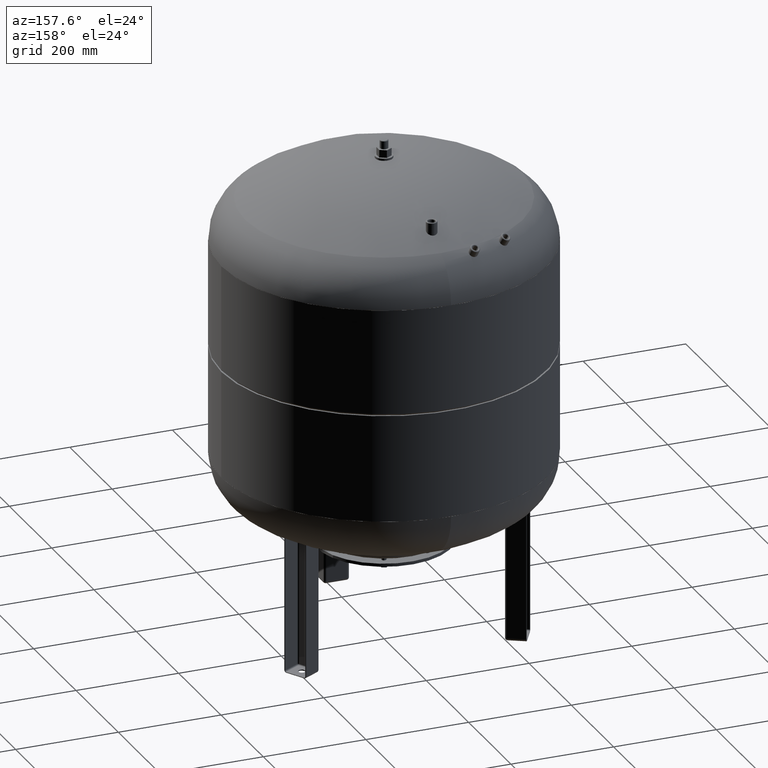
[diagram: clean part render]
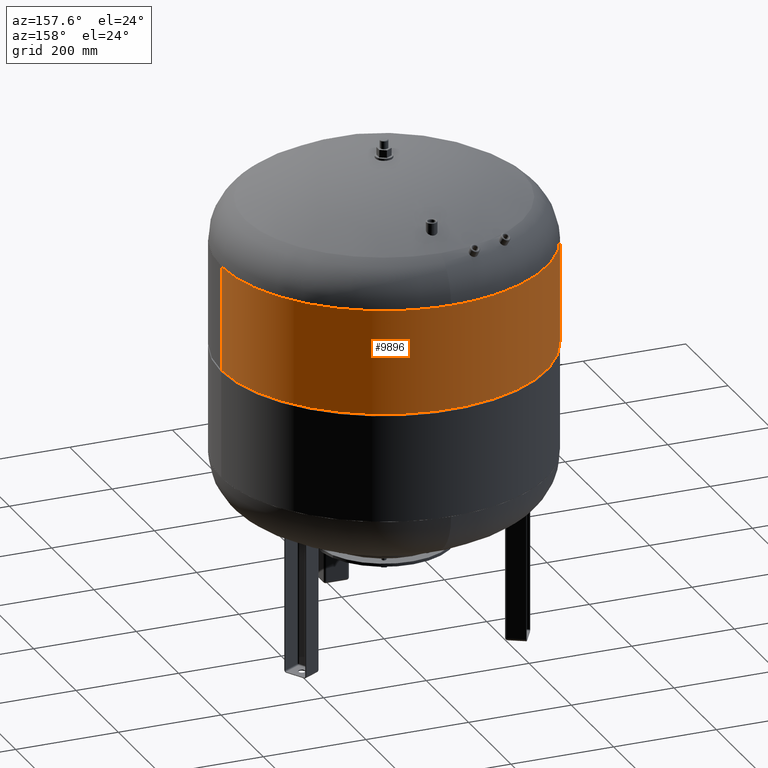
[diagram: same view with one face highlighted and labeled with its STEP entity id]
A machine part, auxiliary view. The second image highlights one B-rep face of the part: STEP entity #9896.
In plain terms, the highlighted cylindrical surface (partial cylindrical patch) has radius 317 mm, axis along (-0, 0, -1).
Its self-contained STEP definition (entity closure, byte-faithful):
#9830=CARTESIAN_POINT('',(316.999999999999830,3.882130E-014,563.500000000000000));
#9831=VERTEX_POINT('',#9830);
#9847=CARTESIAN_POINT('',(-316.999999999999940,-1.282117E-018,563.500000000000000));
#9848=VERTEX_POINT('',#9847);
#9855=CARTESIAN_POINT('',(1.478193E-016,-3.438895E-032,563.500000000000000));
#9856=DIRECTION('',(0.0,0.0,-1.0));
#9857=DIRECTION('',(1.0,0.0,0.0));
#9858=AXIS2_PLACEMENT_3D('',#9855,#9856,#9857);
#9859=CIRCLE('',#9858,316.999999999999830);
#9860=EDGE_CURVE('',#9848,#9831,#9859,.T.);
#9865=CARTESIAN_POINT('',(5.224356E-015,-1.215404E-030,683.700000000000050));
#9866=DIRECTION('',(-4.223408E-017,9.825415E-033,-1.0));
#9867=DIRECTION('',(1.0,0.0,0.0));
#9868=AXIS2_PLACEMENT_3D('',#9865,#9866,#9867);
#9869=CYLINDRICAL_SURFACE('',#9868,316.999999999999940);
#9870=CARTESIAN_POINT('',(317.0,3.882130E-014,768.0));
#9871=VERTEX_POINT('',#9870);
#9872=CARTESIAN_POINT('',(316.999999999999830,3.882130E-014,563.500000000000000));
#9873=DIRECTION('',(0.0,0.0,1.0));
#9874=VECTOR('',#9873,204.500000000000000);
#9875=LINE('',#9872,#9874);
#9876=EDGE_CURVE('',#9831,#9871,#9875,.T.);
#9877=ORIENTED_EDGE('',*,*,#9876,.F.);
#9878=ORIENTED_EDGE('',*,*,#9860,.F.);
#9879=CARTESIAN_POINT('',(-316.999999999999940,-1.282117E-018,768.000000000000110));
#9880=VERTEX_POINT('',#9879);
#9881=CARTESIAN_POINT('',(-316.999999999999940,-1.282117E-018,563.500000000000000));
#9882=DIRECTION('',(0.0,0.0,1.0));
#9883=VECTOR('',#9882,204.500000000000110);
#9884=LINE('',#9881,#9883);
#9885=EDGE_CURVE('',#9848,#9880,#9884,.T.);
#9886=ORIENTED_EDGE('',*,*,#9885,.T.);
#9887=CARTESIAN_POINT('',(8.784689E-015,-2.043686E-030,768.000000000000110));
#9888=DIRECTION('',(0.0,0.0,-1.0));
#9889=DIRECTION('',(1.0,0.0,0.0));
#9890=AXIS2_PLACEMENT_3D('',#9887,#9888,#9889);
#9891=CIRCLE('',#9890,317.0);
#9892=EDGE_CURVE('',#9880,#9871,#9891,.T.);
#9893=ORIENTED_EDGE('',*,*,#9892,.T.);
#9894=EDGE_LOOP('',(#9877,#9878,#9886,#9893));
#9895=FACE_OUTER_BOUND('',#9894,.T.);
#9896=ADVANCED_FACE('',(#9895),#9869,.T.);